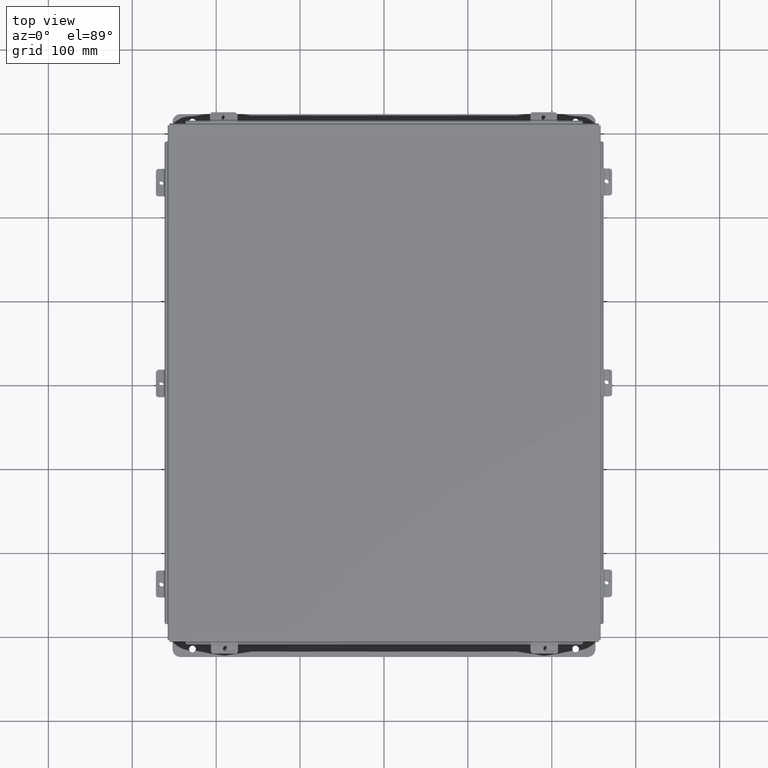
[diagram: clean part render]
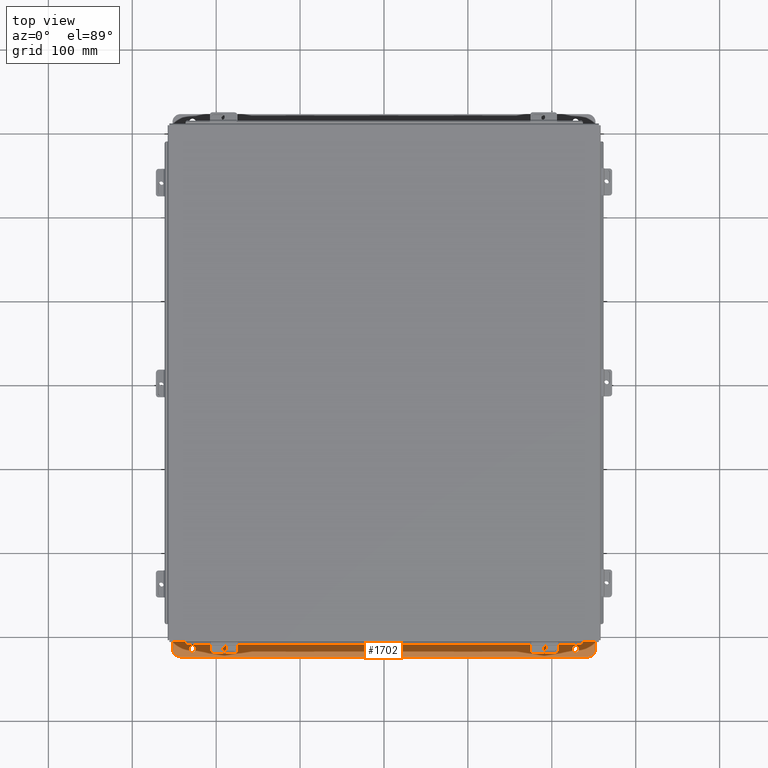
[diagram: same view with one face highlighted and labeled with its STEP entity id]
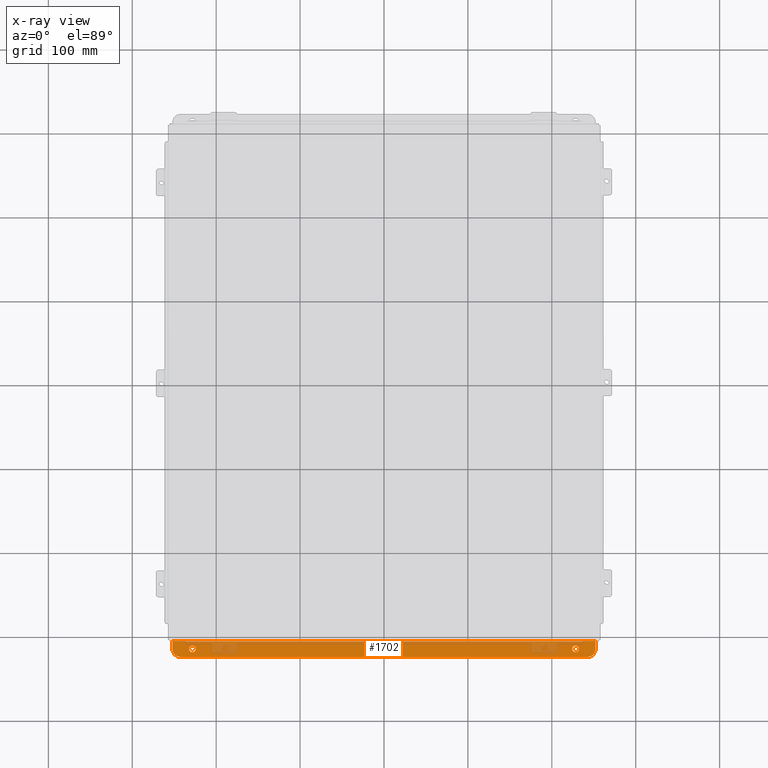
[diagram: x-ray of the same camera — body ghosted, the highlighted face saturated]
A machine part, top view. The second image highlights one B-rep face of the part: STEP entity #1702.
The next image is the same camera in x-ray: the body ghosted, the highlighted face saturated — about 26% of this face is hidden behind the body in this view.
In plain terms, the highlighted planar face has unit normal (0, -0, 1).
Its self-contained STEP definition (entity closure, byte-faithful):
#11 = EDGE_CURVE ( 'NONE', #8472, #6284, #6100, .T. ) ;
#22 = VERTEX_POINT ( 'NONE', #6486 ) ;
#145 = LINE ( 'NONE', #5532, #8133 ) ;
#384 = ORIENTED_EDGE ( 'NONE', *, *, #9603, .T. ) ;
#669 = CARTESIAN_POINT ( 'NONE',  ( 8.987799999999998200, 0.3628000000000161700, -4.112300000000001200 ) ) ;
#801 = VERTEX_POINT ( 'NONE', #9746 ) ;
#826 = DIRECTION ( 'NONE',  ( 0.0000000000000000000, 3.702694488566362300E-015, 1.000000000000000000 ) ) ;
#877 = FACE_BOUND ( 'NONE', #4285, .T. ) ;
#985 = EDGE_CURVE ( 'NONE', #8409, #801, #1621, .T. ) ;
#1111 = DIRECTION ( 'NONE',  ( 0.0000000000000000000, 3.702694488566362300E-015, 1.000000000000000000 ) ) ;
#1285 = ORIENTED_EDGE ( 'NONE', *, *, #3010, .T. ) ;
#1314 = CARTESIAN_POINT ( 'NONE',  ( 9.925299999999998200, 0.01300000000001759100, -4.112299999999995000 ) ) ;
#1446 = DIRECTION ( 'NONE',  ( 0.0000000000000000000, -1.000000000000000000, 3.502369222646487400E-015 ) ) ;
#1621 = CIRCLE ( 'NONE', #3220, 0.1560000000000001700 ) ;
#1678 = ORIENTED_EDGE ( 'NONE', *, *, #6490, .F. ) ;
#1702 = ADVANCED_FACE ( 'NONE', ( #877, #6790, #9093 ), #3128, .T. ) ;
#1797 = EDGE_CURVE ( 'NONE', #6366, #22, #145, .T. ) ;
#1875 = CARTESIAN_POINT ( 'NONE',  ( 8.987799999999989400, 0.5188000000000163600, -4.112300000000001200 ) ) ;
#1882 = DIRECTION ( 'NONE',  ( -0.0000000000000000000, -3.702694488566362300E-015, -1.000000000000000000 ) ) ;
#2118 = DIRECTION ( 'NONE',  ( -0.0000000000000000000, -3.702694488566362300E-015, -1.000000000000000000 ) ) ;
#2286 = CARTESIAN_POINT ( 'NONE',  ( 9.925300000000016000, 0.7378000000000163300, -4.112300000000002100 ) ) ;
#2654 = CARTESIAN_POINT ( 'NONE',  ( -8.987799999999998200, 0.3628000000000008400, -4.112299999999996700 ) ) ;
#2756 = CARTESIAN_POINT ( 'NONE',  ( -9.550299999999998200, 0.3628000000000008400, -4.112300000000001200 ) ) ;
#2936 = CARTESIAN_POINT ( 'NONE',  ( -9.925299999999996500, 0.01299999999999792100, -4.112299999999999400 ) ) ;
#3010 = EDGE_CURVE ( 'NONE', #6289, #22, #5257, .T. ) ;
#3062 = DIRECTION ( 'NONE',  ( 1.000000000000000000, 4.910036603141682400E-031, -0.0000000000000000000 ) ) ;
#3069 = VECTOR ( 'NONE', #7472, 39.37007874015748100 ) ;
#3128 = PLANE ( 'NONE',  #9050 ) ;
#3181 = VECTOR ( 'NONE', #3062, 39.37007874015748100 ) ;
#3220 = AXIS2_PLACEMENT_3D ( 'NONE', #6722, #2118, #7492 ) ;
#3523 = DIRECTION ( 'NONE',  ( 0.0000000000000000000, -1.000000000000000000, 4.370956789862820400E-015 ) ) ;
#3550 = CARTESIAN_POINT ( 'NONE',  ( -8.987800000000007100, 0.5188000000000010400, -4.112299999999996700 ) ) ;
#3620 = EDGE_CURVE ( 'NONE', #9162, #6873, #9102, .T. ) ;
#3895 = ORIENTED_EDGE ( 'NONE', *, *, #3620, .F. ) ;
#3956 = EDGE_CURVE ( 'NONE', #6284, #8472, #4634, .T. ) ;
#4285 = EDGE_LOOP ( 'NONE', ( #9573, #6949 ) ) ;
#4430 = DIRECTION ( 'NONE',  ( -0.0000000000000000000, -3.702694488566362300E-015, -1.000000000000000000 ) ) ;
#4435 = ORIENTED_EDGE ( 'NONE', *, *, #1797, .F. ) ;
#4634 = CIRCLE ( 'NONE', #7686, 0.1560000000000001700 ) ;
#4636 = LINE ( 'NONE', #1314, #3069 ) ;
#4729 = EDGE_LOOP ( 'NONE', ( #6942, #384 ) ) ;
#4895 = CARTESIAN_POINT ( 'NONE',  ( 9.550299999999998200, 0.7378000000000163300, -4.112300000000002100 ) ) ;
#5012 = VECTOR ( 'NONE', #6725, 39.37007874015748100 ) ;
#5243 = LINE ( 'NONE', #2286, #3181 ) ;
#5257 = CIRCLE ( 'NONE', #9295, 0.3750000000000000600 ) ;
#5532 = CARTESIAN_POINT ( 'NONE',  ( -9.925299999999980500, 0.7378000000000011200, -4.112300000000002100 ) ) ;
#5569 = EDGE_LOOP ( 'NONE', ( #1678, #1285, #4435, #8620, #3895, #6562 ) ) ;
#5724 = CARTESIAN_POINT ( 'NONE',  ( 9.550299999999998200, 0.3628000000000161700, -4.112299999999996700 ) ) ;
#5733 = AXIS2_PLACEMENT_3D ( 'NONE', #669, #6067, #1446 ) ;
#5767 = CIRCLE ( 'NONE', #5733, 0.1560000000000001700 ) ;
#5959 = CARTESIAN_POINT ( 'NONE',  ( 9.925299999999998200, 1.748382715945128500E-014, -4.112299999999995000 ) ) ;
#6016 = CIRCLE ( 'NONE', #6642, 0.3750000000000000600 ) ;
#6067 = DIRECTION ( 'NONE',  ( -0.0000000000000000000, -3.702694488566362300E-015, -1.000000000000000000 ) ) ;
#6100 = CIRCLE ( 'NONE', #7067, 0.1560000000000001700 ) ;
#6226 = DIRECTION ( 'NONE',  ( -4.919856193148104900E-031, -1.000000000000000000, 3.702694488566362300E-015 ) ) ;
#6284 = VERTEX_POINT ( 'NONE', #3550 ) ;
#6289 = VERTEX_POINT ( 'NONE', #9757 ) ;
#6307 = EDGE_CURVE ( 'NONE', #6873, #6366, #4636, .T. ) ;
#6366 = VERTEX_POINT ( 'NONE', #2936 ) ;
#6486 = CARTESIAN_POINT ( 'NONE',  ( -9.925299999999980500, 0.3628000000000008400, -4.112299999999996700 ) ) ;
#6490 = EDGE_CURVE ( 'NONE', #6289, #8374, #5243, .T. ) ;
#6509 = DIRECTION ( 'NONE',  ( 0.0000000000000000000, -1.000000000000000000, 4.370956789862820400E-015 ) ) ;
#6562 = ORIENTED_EDGE ( 'NONE', *, *, #9024, .T. ) ;
#6642 = AXIS2_PLACEMENT_3D ( 'NONE', #5724, #1111, #6509 ) ;
#6722 = CARTESIAN_POINT ( 'NONE',  ( 8.987799999999998200, 0.3628000000000161700, -4.112300000000001200 ) ) ;
#6725 = DIRECTION ( 'NONE',  ( -4.919856193148104900E-031, -1.000000000000000000, 3.702694488566362300E-015 ) ) ;
#6790 = FACE_BOUND ( 'NONE', #4729, .T. ) ;
#6873 = VERTEX_POINT ( 'NONE', #7633 ) ;
#6942 = ORIENTED_EDGE ( 'NONE', *, *, #985, .T. ) ;
#6949 = ORIENTED_EDGE ( 'NONE', *, *, #11, .T. ) ;
#7067 = AXIS2_PLACEMENT_3D ( 'NONE', #2654, #1882, #7246 ) ;
#7093 = CARTESIAN_POINT ( 'NONE',  ( 9.925300000000016000, 0.3628000000000161700, -4.112300000000001200 ) ) ;
#7246 = DIRECTION ( 'NONE',  ( 0.0000000000000000000, -1.000000000000000000, 3.502369222646487400E-015 ) ) ;
#7321 = CARTESIAN_POINT ( 'NONE',  ( -8.987800000000007100, 0.2068000000000006800, -4.112299999999995800 ) ) ;
#7472 = DIRECTION ( 'NONE',  ( -1.000000000000000000, -2.752408485047608900E-017, 0.0000000000000000000 ) ) ;
#7492 = DIRECTION ( 'NONE',  ( 0.0000000000000000000, -1.000000000000000000, 3.502369222646487400E-015 ) ) ;
#7633 = CARTESIAN_POINT ( 'NONE',  ( 9.925299999999998200, 0.01300000000001759100, -4.112299999999995000 ) ) ;
#7686 = AXIS2_PLACEMENT_3D ( 'NONE', #9044, #4430, #9833 ) ;
#7872 = DIRECTION ( 'NONE',  ( 4.919856193148104900E-031, 1.000000000000000000, -3.702694488566362300E-015 ) ) ;
#8133 = VECTOR ( 'NONE', #7872, 39.37007874015748100 ) ;
#8140 = DIRECTION ( 'NONE',  ( 0.0000000000000000000, 3.702694488566362300E-015, 1.000000000000000000 ) ) ;
#8374 = VERTEX_POINT ( 'NONE', #4895 ) ;
#8409 = VERTEX_POINT ( 'NONE', #1875 ) ;
#8472 = VERTEX_POINT ( 'NONE', #7321 ) ;
#8620 = ORIENTED_EDGE ( 'NONE', *, *, #6307, .F. ) ;
#9024 = EDGE_CURVE ( 'NONE', #9162, #8374, #6016, .T. ) ;
#9044 = CARTESIAN_POINT ( 'NONE',  ( -8.987799999999998200, 0.3628000000000008400, -4.112299999999996700 ) ) ;
#9050 = AXIS2_PLACEMENT_3D ( 'NONE', #9287, #826, #6226 ) ;
#9093 = FACE_OUTER_BOUND ( 'NONE', #5569, .T. ) ;
#9102 = LINE ( 'NONE', #5959, #5012 ) ;
#9162 = VERTEX_POINT ( 'NONE', #7093 ) ;
#9287 = CARTESIAN_POINT ( 'NONE',  ( -2.035385365534024800E-024, -1.311287036958846300E-014, -4.112299999999999400 ) ) ;
#9295 = AXIS2_PLACEMENT_3D ( 'NONE', #2756, #8140, #3523 ) ;
#9573 = ORIENTED_EDGE ( 'NONE', *, *, #3956, .T. ) ;
#9603 = EDGE_CURVE ( 'NONE', #801, #8409, #5767, .T. ) ;
#9746 = CARTESIAN_POINT ( 'NONE',  ( 8.987799999999989400, 0.2068000000000159700, -4.112300000000000300 ) ) ;
#9757 = CARTESIAN_POINT ( 'NONE',  ( -9.550299999999998200, 0.7378000000000011200, -4.112299999999998500 ) ) ;
#9833 = DIRECTION ( 'NONE',  ( 0.0000000000000000000, -1.000000000000000000, 3.502369222646487400E-015 ) ) ;